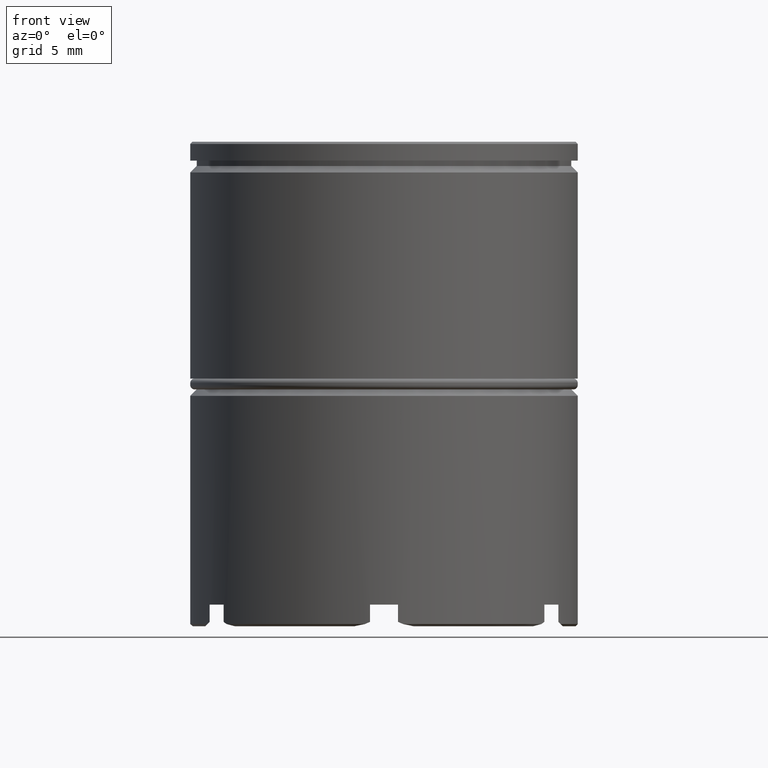
[diagram: clean part render]
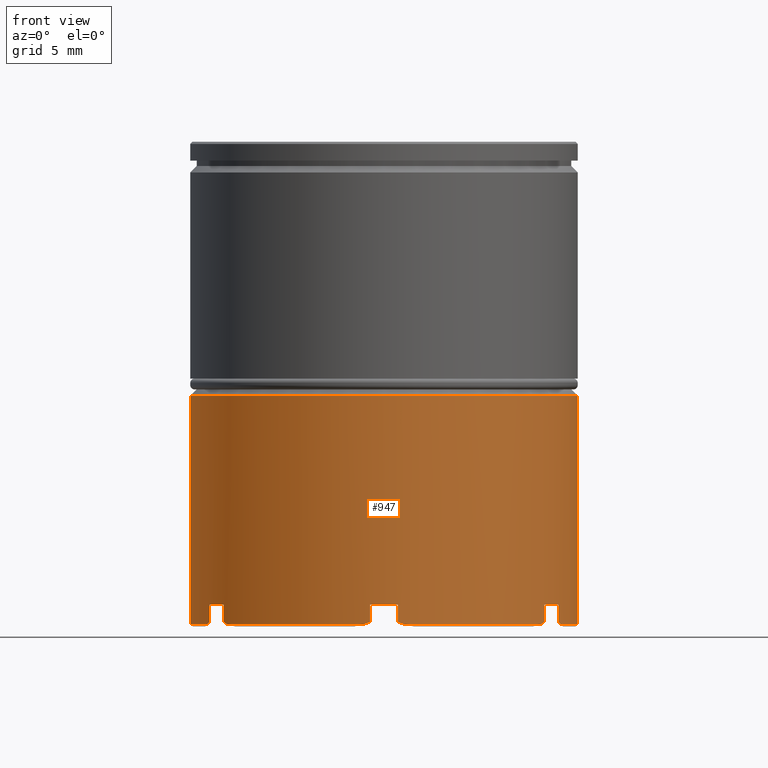
[diagram: same view with one face highlighted and labeled with its STEP entity id]
A machine part, front view. The second image highlights one B-rep face of the part: STEP entity #947.
In plain terms, the highlighted cylindrical surface (partial cylindrical patch) has radius 9 mm, axis along (-0, -0, 1).
Its self-contained STEP definition (entity closure, byte-faithful):
#2 = CARTESIAN_POINT ( 'NONE',  ( -0.6525745041281705294, -8.976310295247255766, -22.29999999999999716 ) ) ;
#10 = EDGE_CURVE ( 'NONE', #1072, #1324, #406, .T. ) ;
#16 = CARTESIAN_POINT ( 'NONE',  ( -0.8875243191582133928, -8.956132010131536703, -22.40000000000000213 ) ) ;
#25 = CIRCLE ( 'NONE', #1086, 9.000000000000000000 ) ;
#26 = VERTEX_POINT ( 'NONE', #1267 ) ;
#27 = DIRECTION ( 'NONE',  ( -1.000000000000000000, 0.000000000000000000, 0.000000000000000000 ) ) ;
#29 = DIRECTION ( 'NONE',  ( -0.000000000000000000, -0.000000000000000000, 1.000000000000000000 ) ) ;
#32 = CARTESIAN_POINT ( 'NONE',  ( 8.134265043819931762, -3.852260587620095933, -22.33426504381993993 ) ) ;
#35 = CARTESIAN_POINT ( 'NONE',  ( 0.000000000000000000, 0.000000000000000000, -22.40000000000000213 ) ) ;
#36 = EDGE_CURVE ( 'NONE', #26, #1622, #25, .T. ) ;
#38 = EDGE_CURVE ( 'NONE', #1324, #1551, #1130, .T. ) ;
#43 = DIRECTION ( 'NONE',  ( -1.000000000000000000, 8.881784197001252323E-15, 0.000000000000000000 ) ) ;
#54 = CARTESIAN_POINT ( 'NONE',  ( -0.6525745041281705294, -8.976310295247255766, -21.50000000000000000 ) ) ;
#55 = EDGE_CURVE ( 'NONE', #1475, #105, #745, .T. ) ;
#79 = CARTESIAN_POINT ( 'NONE',  ( -7.447425495871832446, -5.053301246060655671, -22.29999999999999716 ) ) ;
#93 = VERTEX_POINT ( 'NONE', #426 ) ;
#105 = VERTEX_POINT ( 'NONE', #659 ) ;
#115 = CARTESIAN_POINT ( 'NONE',  ( -7.312475680841789227, -5.246684611933274844, -22.40000000000000213 ) ) ;
#124 = CARTESIAN_POINT ( 'NONE',  ( -0.6525745041281705294, -8.976310295247255766, -22.29999999999999716 ) ) ;
#127 = ORIENTED_EDGE ( 'NONE', *, *, #36, .T. ) ;
#131 = EDGE_CURVE ( 'NONE', #1424, #635, #899, .T. ) ;
#132 = DIRECTION ( 'NONE',  ( -0.000000000000000000, -0.000000000000000000, 1.000000000000000000 ) ) ;
#141 = CARTESIAN_POINT ( 'NONE',  ( 0.000000000000000000, 0.000000000000000000, -22.40000000000000213 ) ) ;
#144 = EDGE_CURVE ( 'NONE', #577, #1133, #417, .T. ) ;
#145 = CARTESIAN_POINT ( 'NONE',  ( 8.199999999999999289, -3.709447398198281842, -22.40000000000000213 ) ) ;
#154 = CARTESIAN_POINT ( 'NONE',  ( 0.000000000000000000, 0.000000000000000000, 0.000000000000000000 ) ) ;
#193 = CARTESIAN_POINT ( 'NONE',  ( 0.8092980770219803111, -8.963883982993673172, -22.36760028435995196 ) ) ;
#210 = CARTESIAN_POINT ( 'NONE',  ( 7.358302207337963807, -5.182814685431772261, -22.36760028435995196 ) ) ;
#213 = EDGE_CURVE ( 'NONE', #1433, #1473, #1398, .T. ) ;
#216 = CIRCLE ( 'NONE', #301, 9.000000000000000000 ) ;
#227 = CARTESIAN_POINT ( 'NONE',  ( 7.403288052786532347, -5.118349875253761283, -22.33426504381993638 ) ) ;
#232 = CARTESIAN_POINT ( 'NONE',  ( 0.6525745041281718617, -8.976310295247255766, 0.000000000000000000 ) ) ;
#237 = CARTESIAN_POINT ( 'NONE',  ( -9.000000000000000000, 1.102182119232617714E-15, -11.80000000000000249 ) ) ;
#240 = DIRECTION ( 'NONE',  ( -0.000000000000000000, -0.000000000000000000, 1.000000000000000000 ) ) ;
#259 = DIRECTION ( 'NONE',  ( -1.000000000000000000, 3.552713678800500929E-15, 0.000000000000000000 ) ) ;
#261 = CARTESIAN_POINT ( 'NONE',  ( -0.7309769910334065202, -8.970610462873848334, -22.33426504381993283 ) ) ;
#262 = VERTEX_POINT ( 'NONE', #992 ) ;
#275 = AXIS2_PLACEMENT_3D ( 'NONE', #293, #316, #813 ) ;
#276 = CARTESIAN_POINT ( 'NONE',  ( 0.8875243191581991820, -8.956132010131536703, -22.40000000000000213 ) ) ;
#293 = CARTESIAN_POINT ( 'NONE',  ( 0.000000000000000000, 0.000000000000000000, -21.50000000000000000 ) ) ;
#297 = ORIENTED_EDGE ( 'NONE', *, *, #768, .T. ) ;
#301 = AXIS2_PLACEMENT_3D ( 'NONE', #551, #569, #1542 ) ;
#316 = DIRECTION ( 'NONE',  ( -0.000000000000000000, -0.000000000000000000, 1.000000000000000000 ) ) ;
#320 = ORIENTED_EDGE ( 'NONE', *, *, #213, .T. ) ;
#322 = VECTOR ( 'NONE', #1526, 1000.000000000000000 ) ;
#327 = CARTESIAN_POINT ( 'NONE',  ( -8.200000000000013500, -3.709447398198253865, -22.40000000000000213 ) ) ;
#340 = EDGE_CURVE ( 'NONE', #105, #1133, #1288, .T. ) ;
#345 = LINE ( 'NONE', #232, #873 ) ;
#353 = CARTESIAN_POINT ( 'NONE',  ( 0.8875243191581991820, -8.956132010131536703, -22.40000000000000213 ) ) ;
#369 = LINE ( 'NONE', #1371, #1547 ) ;
#374 = ORIENTED_EDGE ( 'NONE', *, *, #701, .F. ) ;
#392 = CARTESIAN_POINT ( 'NONE',  ( 0.000000000000000000, 0.000000000000000000, -11.80000000000000249 ) ) ;
#393 = EDGE_CURVE ( 'NONE', #722, #1473, #789, .T. ) ;
#400 = ORIENTED_EDGE ( 'NONE', *, *, #10, .T. ) ;
#401 = CARTESIAN_POINT ( 'NONE',  ( -8.100000000000003197, -3.923009049186599206, -22.29999999999999716 ) ) ;
#406 = CIRCLE ( 'NONE', #1292, 9.000000000000000000 ) ;
#408 = CIRCLE ( 'NONE', #846, 9.000000000000000000 ) ;
#417 = LINE ( 'NONE', #914, #1580 ) ;
#424 = ORIENTED_EDGE ( 'NONE', *, *, #1472, .F. ) ;
#426 = CARTESIAN_POINT ( 'NONE',  ( 0.6525745041281688641, -8.976310295247257542, -21.50000000000000000 ) ) ;
#445 =( BOUNDED_CURVE ( )  B_SPLINE_CURVE ( 3, ( #79, #1216, #473, #583 ),
 .UNSPECIFIED., .F., .T. ) 
 B_SPLINE_CURVE_WITH_KNOTS ( ( 4, 4 ),
 ( 2.690565841793532087, 2.716768226110907403 ),
 .UNSPECIFIED. ) 
 CURVE ( )  GEOMETRIC_REPRESENTATION_ITEM ( )  RATIONAL_B_SPLINE_CURVE ( ( 1.000000000000000000, 0.9999427870730221990, 0.9999427870730221990, 1.000000000000000000 ) ) 
 REPRESENTATION_ITEM ( '' )  );
#451 = EDGE_CURVE ( 'NONE', #1253, #26, #900, .T. ) ;
#465 = CARTESIAN_POINT ( 'NONE',  ( 8.100000000000001421, -3.923009049186602759, -22.30000000000000782 ) ) ;
#472 = ORIENTED_EDGE ( 'NONE', *, *, #485, .T. ) ;
#473 = CARTESIAN_POINT ( 'NONE',  ( -7.358302207337958478, -5.182814685431783808, -22.36760028435995196 ) ) ;
#485 = EDGE_CURVE ( 'NONE', #1387, #1467, #1562, .T. ) ;
#487 = VERTEX_POINT ( 'NONE', #1422 ) ;
#490 = VECTOR ( 'NONE', #542, 1000.000000000000000 ) ;
#496 = ORIENTED_EDGE ( 'NONE', *, *, #340, .T. ) ;
#498 = CARTESIAN_POINT ( 'NONE',  ( -8.100000000000003197, -3.923009049186599206, 0.000000000000000000 ) ) ;
#515 = CARTESIAN_POINT ( 'NONE',  ( 7.447425495871829781, -5.053301246060659224, -22.30000000000000426 ) ) ;
#526 = CARTESIAN_POINT ( 'NONE',  ( -8.100000000000003197, -3.923009049186599206, -21.50000000000000000 ) ) ;
#542 = DIRECTION ( 'NONE',  ( -0.000000000000000000, -0.000000000000000000, 1.000000000000000000 ) ) ;
#551 = CARTESIAN_POINT ( 'NONE',  ( 0.000000000000000000, 0.000000000000000000, -22.40000000000000213 ) ) ;
#552 = DIRECTION ( 'NONE',  ( -0.000000000000000000, -0.000000000000000000, 1.000000000000000000 ) ) ;
#562 = EDGE_CURVE ( 'NONE', #635, #1433, #216, .T. ) ;
#569 = DIRECTION ( 'NONE',  ( -0.000000000000000000, -0.000000000000000000, 1.000000000000000000 ) ) ;
#577 = VERTEX_POINT ( 'NONE', #54 ) ;
#583 = CARTESIAN_POINT ( 'NONE',  ( -7.312475680841789227, -5.246684611933274844, -22.40000000000000213 ) ) ;
#586 = CARTESIAN_POINT ( 'NONE',  ( 0.7309769910333990817, -8.970610462873850111, -22.33426504381993638 ) ) ;
#592 = ORIENTED_EDGE ( 'NONE', *, *, #1581, .F. ) ;
#609 = CARTESIAN_POINT ( 'NONE',  ( 7.447425495871832446, -5.053301246060657448, -21.50000000000000000 ) ) ;
#622 = EDGE_LOOP ( 'NONE', ( #812, #400, #717, #592, #727, #424, #1200, #1142, #496, #1315, #297, #374, #1482, #1589, #320, #1221, #1566, #937, #472, #1274, #1046, #127 ) ) ;
#635 = VERTEX_POINT ( 'NONE', #353 ) ;
#643 = CARTESIAN_POINT ( 'NONE',  ( 7.447425495871829781, -5.053301246060659224, 0.000000000000000000 ) ) ;
#652 = CARTESIAN_POINT ( 'NONE',  ( -8.134265043819940644, -3.852260587620081722, -22.33426504381992928 ) ) ;
#659 = CARTESIAN_POINT ( 'NONE',  ( -0.8875243191582133928, -8.956132010131536703, -22.40000000000000213 ) ) ;
#668 = CARTESIAN_POINT ( 'NONE',  ( 0.000000000000000000, 0.000000000000000000, -21.50000000000000000 ) ) ;
#684 = VECTOR ( 'NONE', #132, 1000.000000000000000 ) ;
#701 = EDGE_CURVE ( 'NONE', #1424, #93, #345, .T. ) ;
#717 = ORIENTED_EDGE ( 'NONE', *, *, #38, .T. ) ;
#722 = VERTEX_POINT ( 'NONE', #609 ) ;
#727 = ORIENTED_EDGE ( 'NONE', *, *, #960, .T. ) ;
#740 = LINE ( 'NONE', #498, #1419 ) ;
#745 = CIRCLE ( 'NONE', #1218, 9.000000000000000000 ) ;
#747 = CARTESIAN_POINT ( 'NONE',  ( 7.447425495871829781, -5.053301246060659224, -22.30000000000000426 ) ) ;
#752 = VERTEX_POINT ( 'NONE', #1027 ) ;
#756 = CARTESIAN_POINT ( 'NONE',  ( -0.8092980770219940778, -8.963883982993673172, -22.36760028435994840 ) ) ;
#757 = DIRECTION ( 'NONE',  ( -1.000000000000000000, 0.000000000000000000, 0.000000000000000000 ) ) ;
#760 = EDGE_CURVE ( 'NONE', #1387, #487, #872, .T. ) ;
#762 = DIRECTION ( 'NONE',  ( -0.000000000000000000, -0.000000000000000000, 1.000000000000000000 ) ) ;
#764 = CARTESIAN_POINT ( 'NONE',  ( -8.200000000000013500, -3.709447398198253865, -22.40000000000000213 ) ) ;
#768 = EDGE_CURVE ( 'NONE', #577, #93, #408, .T. ) ;
#782 = EDGE_CURVE ( 'NONE', #1467, #1253, #1145, .T. ) ;
#789 = LINE ( 'NONE', #643, #322 ) ;
#812 = ORIENTED_EDGE ( 'NONE', *, *, #1493, .F. ) ;
#813 = DIRECTION ( 'NONE',  ( -1.000000000000000000, 0.000000000000000000, 0.000000000000000000 ) ) ;
#839 = CARTESIAN_POINT ( 'NONE',  ( 7.312475680841800774, -5.246684611933255304, -22.40000000000000213 ) ) ;
#846 = AXIS2_PLACEMENT_3D ( 'NONE', #1512, #762, #999 ) ;
#860 = CARTESIAN_POINT ( 'NONE',  ( 0.000000000000000000, 0.000000000000000000, -22.40000000000000213 ) ) ;
#869 = DIRECTION ( 'NONE',  ( 0.000000000000000000, 0.000000000000000000, -1.000000000000000000 ) ) ;
#872 = LINE ( 'NONE', #1628, #684 ) ;
#873 = VECTOR ( 'NONE', #1217, 1000.000000000000000 ) ;
#882 = LINE ( 'NONE', #907, #1078 ) ;
#886 = DIRECTION ( 'NONE',  ( 1.000000000000000000, 0.000000000000000000, 0.000000000000000000 ) ) ;
#894 = DIRECTION ( 'NONE',  ( 0.000000000000000000, 0.000000000000000000, -1.000000000000000000 ) ) ;
#899 =( BOUNDED_CURVE ( )  B_SPLINE_CURVE ( 3, ( #1538, #586, #193, #276 ),
 .UNSPECIFIED., .F., .T. ) 
 B_SPLINE_CURVE_WITH_KNOTS ( ( 4, 4 ),
 ( 2.690565841793532087, 2.716768226110904738 ),
 .UNSPECIFIED. ) 
 CURVE ( )  GEOMETRIC_REPRESENTATION_ITEM ( )  RATIONAL_B_SPLINE_CURVE ( ( 1.000000000000000000, 0.9999427870730221990, 0.9999427870730221990, 1.000000000000000000 ) ) 
 REPRESENTATION_ITEM ( '' )  );
#900 = LINE ( 'NONE', #1162, #490 ) ;
#907 = CARTESIAN_POINT ( 'NONE',  ( -9.000000000000000000, 1.102182119232617714E-15, 0.000000000000000000 ) ) ;
#914 = CARTESIAN_POINT ( 'NONE',  ( -0.6525745041281705294, -8.976310295247255766, 0.000000000000000000 ) ) ;
#925 = CARTESIAN_POINT ( 'NONE',  ( -8.167600284359959772, -3.781069297561886255, -22.36760028435994840 ) ) ;
#931 = EDGE_CURVE ( 'NONE', #722, #487, #1555, .T. ) ;
#937 = ORIENTED_EDGE ( 'NONE', *, *, #760, .F. ) ;
#947 = ADVANCED_FACE ( 'NONE', ( #1553 ), #1175, .T. ) ;
#960 = EDGE_CURVE ( 'NONE', #1460, #262, #1406, .T. ) ;
#992 = CARTESIAN_POINT ( 'NONE',  ( -7.447425495871832446, -5.053301246060655671, -21.50000000000000000 ) ) ;
#999 = DIRECTION ( 'NONE',  ( -1.000000000000000000, 0.000000000000000000, 0.000000000000000000 ) ) ;
#1009 = DIRECTION ( 'NONE',  ( -0.000000000000000000, -0.000000000000000000, 1.000000000000000000 ) ) ;
#1027 = CARTESIAN_POINT ( 'NONE',  ( -7.447425495871832446, -5.053301246060655671, -22.29999999999999716 ) ) ;
#1038 = AXIS2_PLACEMENT_3D ( 'NONE', #154, #29, #1428 ) ;
#1046 = ORIENTED_EDGE ( 'NONE', *, *, #451, .T. ) ;
#1072 = VERTEX_POINT ( 'NONE', #1093 ) ;
#1078 = VECTOR ( 'NONE', #1412, 1000.000000000000000 ) ;
#1086 = AXIS2_PLACEMENT_3D ( 'NONE', #392, #1515, #886 ) ;
#1093 = CARTESIAN_POINT ( 'NONE',  ( -9.000000000000000000, 1.102182119232617714E-15, -22.40000000000000213 ) ) ;
#1107 = CARTESIAN_POINT ( 'NONE',  ( 7.312475680841800774, -5.246684611933255304, -22.40000000000000213 ) ) ;
#1121 = AXIS2_PLACEMENT_3D ( 'NONE', #668, #1563, #43 ) ;
#1130 =( BOUNDED_CURVE ( )  B_SPLINE_CURVE ( 3, ( #764, #925, #652, #1165 ),
 .UNSPECIFIED., .F., .T. ) 
 B_SPLINE_CURVE_WITH_KNOTS ( ( 4, 4 ),
 ( 3.566417081068678385, 3.592619465386054589 ),
 .UNSPECIFIED. ) 
 CURVE ( )  GEOMETRIC_REPRESENTATION_ITEM ( )  RATIONAL_B_SPLINE_CURVE ( ( 1.000000000000000000, 0.9999427870730221990, 0.9999427870730221990, 1.000000000000000000 ) ) 
 REPRESENTATION_ITEM ( '' )  );
#1133 = VERTEX_POINT ( 'NONE', #124 ) ;
#1142 = ORIENTED_EDGE ( 'NONE', *, *, #55, .T. ) ;
#1145 = CIRCLE ( 'NONE', #1378, 9.000000000000000000 ) ;
#1162 = CARTESIAN_POINT ( 'NONE',  ( 9.000000000000000000, 0.000000000000000000, 0.000000000000000000 ) ) ;
#1165 = CARTESIAN_POINT ( 'NONE',  ( -8.100000000000003197, -3.923009049186599206, -22.29999999999999716 ) ) ;
#1170 = CARTESIAN_POINT ( 'NONE',  ( 8.100000000000001421, -3.923009049186602759, -22.30000000000000782 ) ) ;
#1175 = CYLINDRICAL_SURFACE ( 'NONE', #1038, 9.000000000000000000 ) ;
#1200 = ORIENTED_EDGE ( 'NONE', *, *, #1352, .T. ) ;
#1216 = CARTESIAN_POINT ( 'NONE',  ( -7.403288052786529683, -5.118349875253766612, -22.33426504381993283 ) ) ;
#1217 = DIRECTION ( 'NONE',  ( -0.000000000000000000, -0.000000000000000000, 1.000000000000000000 ) ) ;
#1218 = AXIS2_PLACEMENT_3D ( 'NONE', #35, #552, #27 ) ;
#1221 = ORIENTED_EDGE ( 'NONE', *, *, #393, .F. ) ;
#1231 = CARTESIAN_POINT ( 'NONE',  ( 0.6525745041281718617, -8.976310295247255766, -22.30000000000000426 ) ) ;
#1253 = VERTEX_POINT ( 'NONE', #1437 ) ;
#1267 = CARTESIAN_POINT ( 'NONE',  ( 9.000000000000000000, 0.000000000000000000, -11.80000000000000249 ) ) ;
#1274 = ORIENTED_EDGE ( 'NONE', *, *, #782, .T. ) ;
#1288 =( BOUNDED_CURVE ( )  B_SPLINE_CURVE ( 3, ( #16, #756, #261, #2 ),
 .UNSPECIFIED., .F., .T. ) 
 B_SPLINE_CURVE_WITH_KNOTS ( ( 4, 4 ),
 ( 3.566417081068680162, 3.592619465386054589 ),
 .UNSPECIFIED. ) 
 CURVE ( )  GEOMETRIC_REPRESENTATION_ITEM ( )  RATIONAL_B_SPLINE_CURVE ( ( 1.000000000000000000, 0.9999427870730221990, 0.9999427870730221990, 1.000000000000000000 ) ) 
 REPRESENTATION_ITEM ( '' )  );
#1292 = AXIS2_PLACEMENT_3D ( 'NONE', #860, #1631, #757 ) ;
#1297 = CARTESIAN_POINT ( 'NONE',  ( 8.167600284359949114, -3.781069297561909792, -22.36760028435995196 ) ) ;
#1315 = ORIENTED_EDGE ( 'NONE', *, *, #144, .F. ) ;
#1318 = CARTESIAN_POINT ( 'NONE',  ( 8.199999999999999289, -3.709447398198281842, -22.40000000000000213 ) ) ;
#1324 = VERTEX_POINT ( 'NONE', #327 ) ;
#1352 = EDGE_CURVE ( 'NONE', #752, #1475, #445, .T. ) ;
#1371 = CARTESIAN_POINT ( 'NONE',  ( -7.447425495871832446, -5.053301246060655671, 0.000000000000000000 ) ) ;
#1378 = AXIS2_PLACEMENT_3D ( 'NONE', #141, #1009, #259 ) ;
#1387 = VERTEX_POINT ( 'NONE', #465 ) ;
#1398 =( BOUNDED_CURVE ( )  B_SPLINE_CURVE ( 3, ( #1107, #210, #227, #747 ),
 .UNSPECIFIED., .F., .T. ) 
 B_SPLINE_CURVE_WITH_KNOTS ( ( 4, 4 ),
 ( 3.566417081068681494, 3.592619465386054145 ),
 .UNSPECIFIED. ) 
 CURVE ( )  GEOMETRIC_REPRESENTATION_ITEM ( )  RATIONAL_B_SPLINE_CURVE ( ( 1.000000000000000000, 0.9999427870730221990, 0.9999427870730221990, 1.000000000000000000 ) ) 
 REPRESENTATION_ITEM ( '' )  );
#1406 = CIRCLE ( 'NONE', #275, 9.000000000000000000 ) ;
#1412 = DIRECTION ( 'NONE',  ( -0.000000000000000000, -0.000000000000000000, 1.000000000000000000 ) ) ;
#1419 = VECTOR ( 'NONE', #869, 1000.000000000000000 ) ;
#1422 = CARTESIAN_POINT ( 'NONE',  ( 8.100000000000001421, -3.923009049186602759, -21.50000000000000000 ) ) ;
#1424 = VERTEX_POINT ( 'NONE', #1231 ) ;
#1428 = DIRECTION ( 'NONE',  ( 1.000000000000000000, 0.000000000000000000, 0.000000000000000000 ) ) ;
#1433 = VERTEX_POINT ( 'NONE', #839 ) ;
#1437 = CARTESIAN_POINT ( 'NONE',  ( 9.000000000000000000, 0.000000000000000000, -22.40000000000000213 ) ) ;
#1460 = VERTEX_POINT ( 'NONE', #526 ) ;
#1467 = VERTEX_POINT ( 'NONE', #145 ) ;
#1472 = EDGE_CURVE ( 'NONE', #752, #262, #369, .T. ) ;
#1473 = VERTEX_POINT ( 'NONE', #515 ) ;
#1475 = VERTEX_POINT ( 'NONE', #115 ) ;
#1482 = ORIENTED_EDGE ( 'NONE', *, *, #131, .T. ) ;
#1493 = EDGE_CURVE ( 'NONE', #1072, #1622, #882, .T. ) ;
#1512 = CARTESIAN_POINT ( 'NONE',  ( 0.000000000000000000, 0.000000000000000000, -21.50000000000000000 ) ) ;
#1515 = DIRECTION ( 'NONE',  ( 0.000000000000000000, 0.000000000000000000, -1.000000000000000000 ) ) ;
#1526 = DIRECTION ( 'NONE',  ( 0.000000000000000000, 0.000000000000000000, -1.000000000000000000 ) ) ;
#1538 = CARTESIAN_POINT ( 'NONE',  ( 0.6525745041281718617, -8.976310295247255766, -22.30000000000000426 ) ) ;
#1542 = DIRECTION ( 'NONE',  ( -1.000000000000000000, 8.881784197001252323E-16, 0.000000000000000000 ) ) ;
#1547 = VECTOR ( 'NONE', #240, 1000.000000000000000 ) ;
#1551 = VERTEX_POINT ( 'NONE', #401 ) ;
#1553 = FACE_OUTER_BOUND ( 'NONE', #622, .T. ) ;
#1555 = CIRCLE ( 'NONE', #1121, 9.000000000000000000 ) ;
#1562 =( BOUNDED_CURVE ( )  B_SPLINE_CURVE ( 3, ( #1170, #32, #1297, #1318 ),
 .UNSPECIFIED., .F., .T. ) 
 B_SPLINE_CURVE_WITH_KNOTS ( ( 4, 4 ),
 ( 2.690565841793531199, 2.716768226110904294 ),
 .UNSPECIFIED. ) 
 CURVE ( )  GEOMETRIC_REPRESENTATION_ITEM ( )  RATIONAL_B_SPLINE_CURVE ( ( 1.000000000000000000, 0.9999427870730221990, 0.9999427870730221990, 1.000000000000000000 ) ) 
 REPRESENTATION_ITEM ( '' )  );
#1563 = DIRECTION ( 'NONE',  ( -0.000000000000000000, -0.000000000000000000, 1.000000000000000000 ) ) ;
#1566 = ORIENTED_EDGE ( 'NONE', *, *, #931, .T. ) ;
#1580 = VECTOR ( 'NONE', #894, 1000.000000000000000 ) ;
#1581 = EDGE_CURVE ( 'NONE', #1460, #1551, #740, .T. ) ;
#1589 = ORIENTED_EDGE ( 'NONE', *, *, #562, .T. ) ;
#1622 = VERTEX_POINT ( 'NONE', #237 ) ;
#1628 = CARTESIAN_POINT ( 'NONE',  ( 8.100000000000001421, -3.923009049186602759, 0.000000000000000000 ) ) ;
#1631 = DIRECTION ( 'NONE',  ( -0.000000000000000000, -0.000000000000000000, 1.000000000000000000 ) ) ;